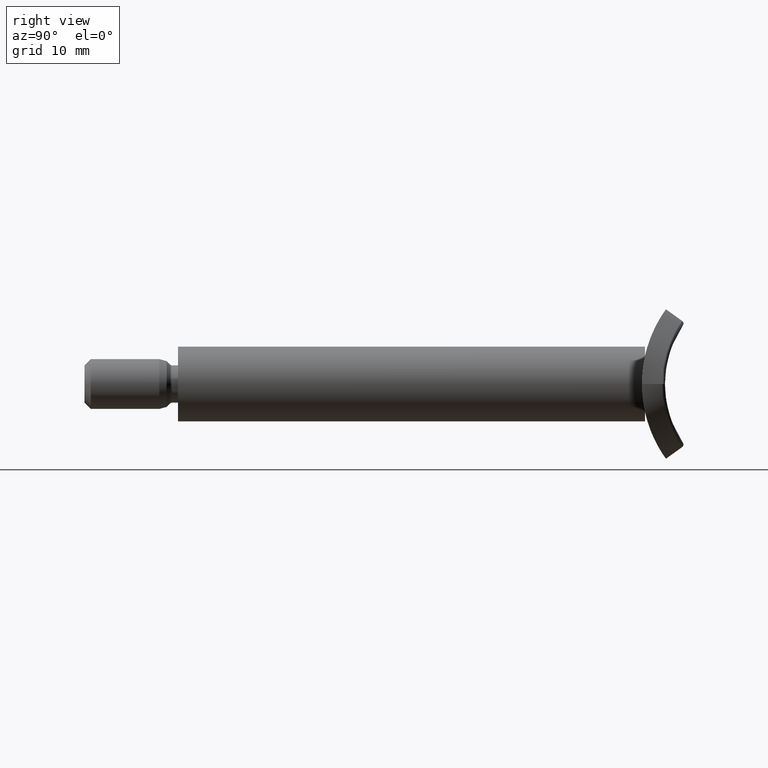
[diagram: clean part render]
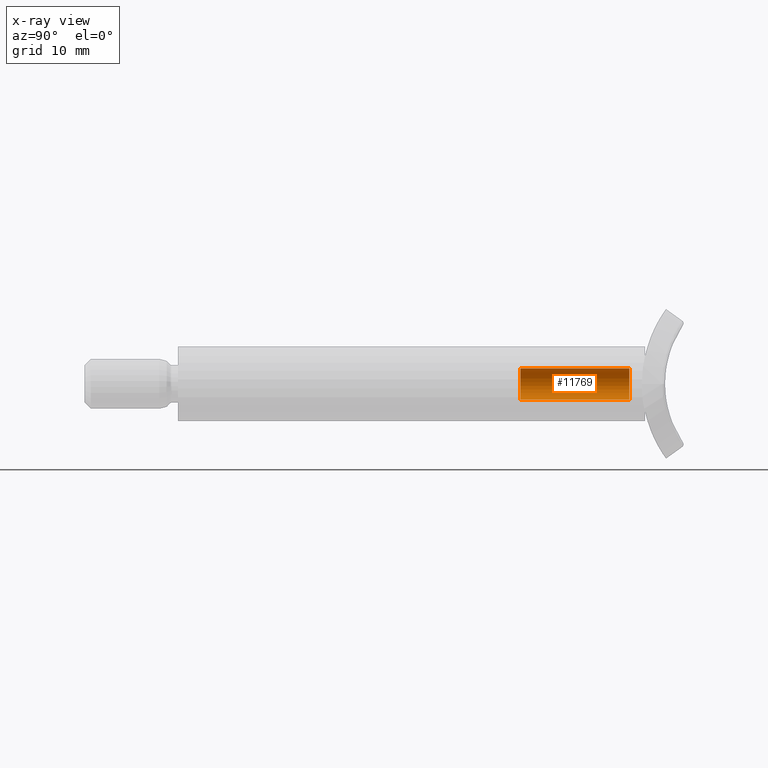
[diagram: x-ray — body ghosted, one internal face saturated and labeled with its STEP entity id]
A machine part, right view, then the same camera in x-ray: the body is ghosted and one INTERNAL B-rep face — a face not visible from any outside direction — is saturated and labeled: STEP entity #11769.
In plain terms, the highlighted cylindrical surface (edge-blend (fillet) strip) has radius 2.5 mm, axis along (0, 1, 0).
Its self-contained STEP definition (entity closure, byte-faithful):
#283 = DIRECTION ( 'NONE',  ( 0.0000000000000000000, 0.0000000000000000000, 1.000000000000000000 ) ) ;
#794 = EDGE_CURVE ( 'NONE', #2616, #10523, #10628, .T. ) ;
#1106 = CARTESIAN_POINT ( 'NONE',  ( 0.0000000000000000000, 72.49999999999998600, 0.0000000000000000000 ) ) ;
#1339 = CARTESIAN_POINT ( 'NONE',  ( 3.061616997868373800E-016, 74.99999999999998600, -2.499999999999992900 ) ) ;
#1741 = CARTESIAN_POINT ( 'NONE',  ( 0.0000000000000000000, 55.00000000000000000, 0.0000000000000000000 ) ) ;
#1904 = CARTESIAN_POINT ( 'NONE',  ( 0.0000000000000000000, 72.49999999999998600, 2.499999999999997300 ) ) ;
#2616 = VERTEX_POINT ( 'NONE', #11723 ) ;
#2685 = VERTEX_POINT ( 'NONE', #8361 ) ;
#3472 = CARTESIAN_POINT ( 'NONE',  ( 0.0000000000000000000, 74.99999999999998600, 0.0000000000000000000 ) ) ;
#3760 = DIRECTION ( 'NONE',  ( -0.0000000000000000000, 1.000000000000000000, -0.0000000000000000000 ) ) ;
#4340 = AXIS2_PLACEMENT_3D ( 'NONE', #1106, #13929, #283 ) ;
#4838 = DIRECTION ( 'NONE',  ( 0.0000000000000000000, 0.0000000000000000000, 1.000000000000000000 ) ) ;
#6230 = EDGE_CURVE ( 'NONE', #2685, #13782, #10311, .T. ) ;
#6805 = CARTESIAN_POINT ( 'NONE',  ( 0.0000000000000000000, 55.00000000000000000, 2.499999999999994700 ) ) ;
#7047 = EDGE_CURVE ( 'NONE', #13782, #10523, #9563, .T. ) ;
#7223 = EDGE_LOOP ( 'NONE', ( #13933, #10792, #10103, #14529 ) ) ;
#8361 = CARTESIAN_POINT ( 'NONE',  ( 3.061616997868376700E-016, 55.00000000000000000, -2.499999999999994700 ) ) ;
#8518 = VECTOR ( 'NONE', #3760, 1000.000000000000000 ) ;
#9563 = LINE ( 'NONE', #13539, #14088 ) ;
#9618 = LINE ( 'NONE', #1339, #8518 ) ;
#9900 = DIRECTION ( 'NONE',  ( -0.0000000000000000000, 1.000000000000000000, -0.0000000000000000000 ) ) ;
#10103 = ORIENTED_EDGE ( 'NONE', *, *, #794, .T. ) ;
#10311 = CIRCLE ( 'NONE', #15075, 2.499999999999994700 ) ;
#10523 = VERTEX_POINT ( 'NONE', #1904 ) ;
#10628 = CIRCLE ( 'NONE', #4340, 2.499999999999997300 ) ;
#10792 = ORIENTED_EDGE ( 'NONE', *, *, #11793, .T. ) ;
#11060 = CYLINDRICAL_SURFACE ( 'NONE', #14754, 2.499999999999992900 ) ;
#11723 = CARTESIAN_POINT ( 'NONE',  ( 4.592425496802573000E-016, 72.49999999999998600, -2.499999999999997300 ) ) ;
#11769 = ADVANCED_FACE ( 'NONE', ( #12497 ), #11060, .F. ) ;
#11793 = EDGE_CURVE ( 'NONE', #2685, #2616, #9618, .T. ) ;
#12497 = FACE_OUTER_BOUND ( 'NONE', #7223, .T. ) ;
#12935 = DIRECTION ( 'NONE',  ( -0.0000000000000000000, 1.000000000000000000, -0.0000000000000000000 ) ) ;
#13539 = CARTESIAN_POINT ( 'NONE',  ( 0.0000000000000000000, 74.99999999999998600, 2.499999999999992900 ) ) ;
#13782 = VERTEX_POINT ( 'NONE', #6805 ) ;
#13929 = DIRECTION ( 'NONE',  ( -0.0000000000000000000, 1.000000000000000000, -0.0000000000000000000 ) ) ;
#13933 = ORIENTED_EDGE ( 'NONE', *, *, #6230, .F. ) ;
#14088 = VECTOR ( 'NONE', #14718, 1000.000000000000000 ) ;
#14319 = DIRECTION ( 'NONE',  ( 0.0000000000000000000, 0.0000000000000000000, 1.000000000000000000 ) ) ;
#14529 = ORIENTED_EDGE ( 'NONE', *, *, #7047, .F. ) ;
#14718 = DIRECTION ( 'NONE',  ( -0.0000000000000000000, 1.000000000000000000, -0.0000000000000000000 ) ) ;
#14754 = AXIS2_PLACEMENT_3D ( 'NONE', #3472, #12935, #4838 ) ;
#15075 = AXIS2_PLACEMENT_3D ( 'NONE', #1741, #9900, #14319 ) ;